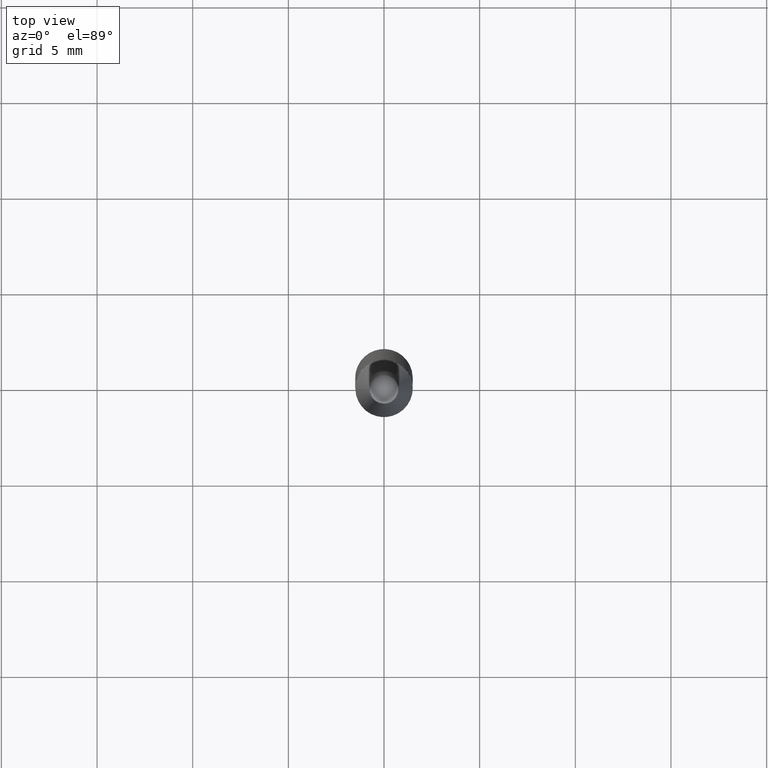
[diagram: clean part render]
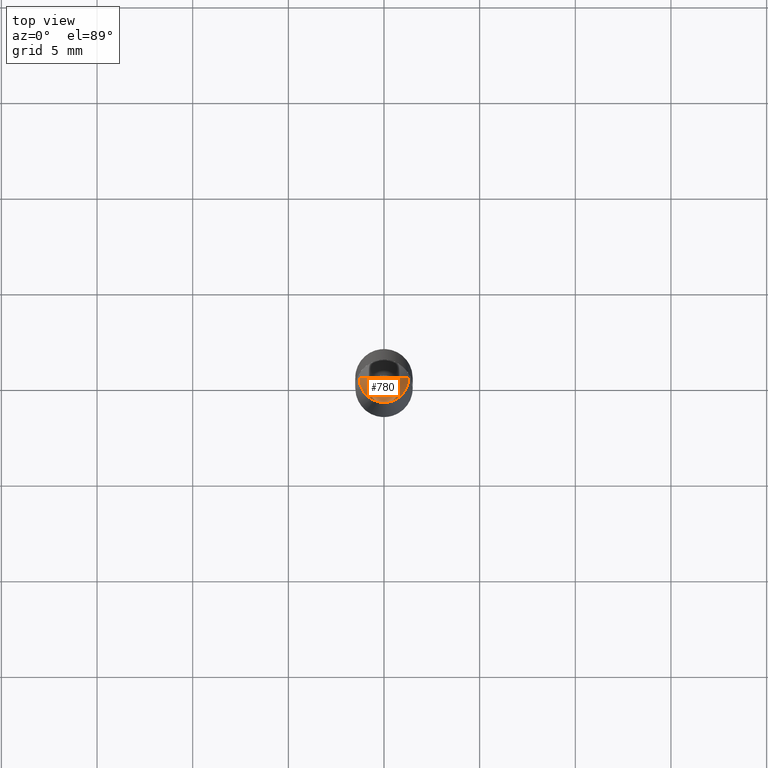
[diagram: same view with one face highlighted and labeled with its STEP entity id]
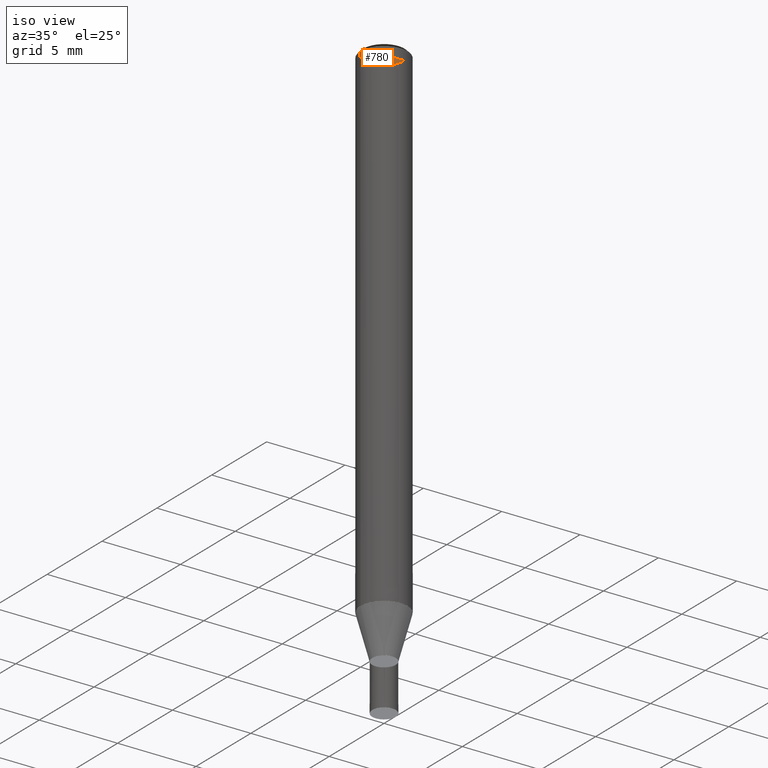
[diagram: same view with one face highlighted and labeled with its STEP entity id]
A machine part, top view. The second image highlights one B-rep face of the part: STEP entity #780.
A second angle (iso view) of the same face is appended — the face is thin or edge-on in the first view.
In plain terms, the highlighted face is a freeform B-spline surface patch.
Its self-contained STEP definition (entity closure, byte-faithful):
#425=CARTESIAN_POINT('',(1.3,0.0,32.2));
#429=CARTESIAN_POINT('',(-1.3,0.0,32.2));
#430=CARTESIAN_POINT('',(0.0,0.0,32.2));
#440=CARTESIAN_POINT('',(-1.3,-1.3,32.2));
#441=CARTESIAN_POINT('',(0.0,-1.3,32.2));
#442=CARTESIAN_POINT('',(1.3,-1.3,32.2));
#765=(
BOUNDED_SURFACE()
B_SPLINE_SURFACE(1,2,(
(#429,#440,#441,#442,#425),
(#430,#430,#430,#430,#430)
), .UNSPECIFIED.,.F.,.F.,.F.)
B_SPLINE_SURFACE_WITH_KNOTS((2,2),(3,2,3),(
0.0,1.0),(
0.0,0.5,1.0), .UNSPECIFIED.)
GEOMETRIC_REPRESENTATION_ITEM()
RATIONAL_B_SPLINE_SURFACE(((1.0,0.707106781187,1.0,0.707106781187,1.0),
(1.0,0.707106781187,1.0,0.707106781187,1.0)
))
REPRESENTATION_ITEM('')
SURFACE()
);
#766=(
BOUNDED_CURVE()
B_SPLINE_CURVE(2,(#425,#442,#441,#440,#429),.UNSPECIFIED.,.F.,.F.)
B_SPLINE_CURVE_WITH_KNOTS((3,2,3),
(0.0,0.5,1.0),.UNSPECIFIED.)
CURVE()
GEOMETRIC_REPRESENTATION_ITEM()
RATIONAL_B_SPLINE_CURVE((1.0,0.707106781187,1.0,0.707106781187,1.0))
REPRESENTATION_ITEM('')
);
#767=(
BOUNDED_CURVE()
B_SPLINE_CURVE(1,(#429,#430),.UNSPECIFIED.,.F.,.F.)
B_SPLINE_CURVE_WITH_KNOTS((2,2),
(0.0,1.0),.UNSPECIFIED.)
CURVE()
GEOMETRIC_REPRESENTATION_ITEM()
RATIONAL_B_SPLINE_CURVE((1.0,1.0))
REPRESENTATION_ITEM('')
);
#768=(
BOUNDED_CURVE()
B_SPLINE_CURVE(1,(#430,#425),.UNSPECIFIED.,.F.,.F.)
B_SPLINE_CURVE_WITH_KNOTS((2,2),
(0.0,1.0),.UNSPECIFIED.)
CURVE()
GEOMETRIC_REPRESENTATION_ITEM()
RATIONAL_B_SPLINE_CURVE((1.0,1.0))
REPRESENTATION_ITEM('')
);
#769=VERTEX_POINT('',#425);
#770=VERTEX_POINT('',#429);
#771=VERTEX_POINT('',#430);
#772=EDGE_CURVE('',#769,#770,#766,.T.);
#773=EDGE_CURVE('',#770,#771,#767,.T.);
#774=EDGE_CURVE('',#771,#769,#768,.T.);
#775=ORIENTED_EDGE('',*,*,#772,.T.);
#776=ORIENTED_EDGE('',*,*,#773,.T.);
#777=ORIENTED_EDGE('',*,*,#774,.T.);
#778=EDGE_LOOP('',(#775,#776,#777));
#779=FACE_OUTER_BOUND('',#778,.T.);
#780=ADVANCED_FACE('',(#779),#765,.T.);